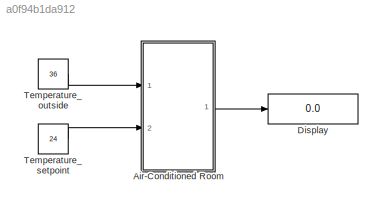
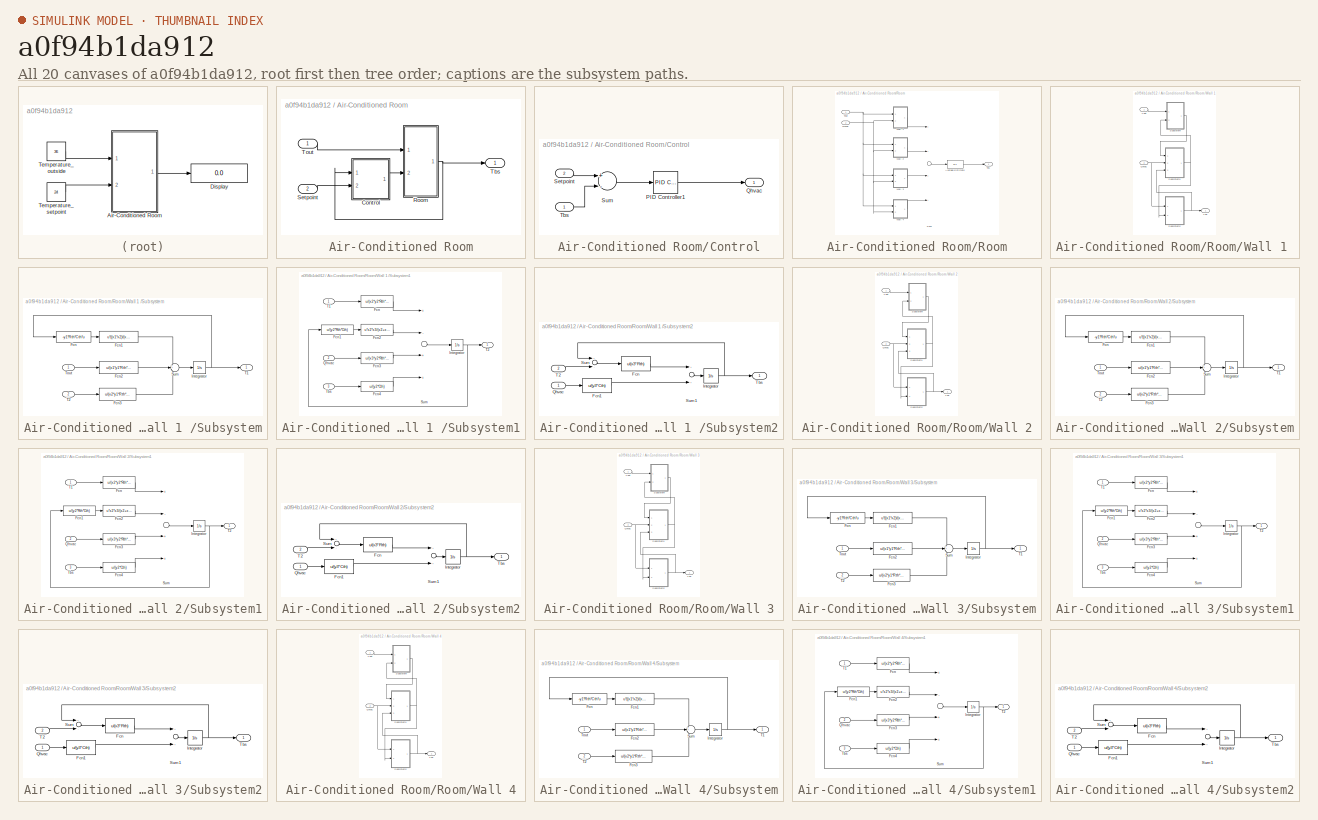
[diagram: thumbnail index - all 20 canvases of the model, root first then tree order]
MODEL slx_a0f94b1da912
KIND model
CONFIG AbsTol = auto
CONFIG FixedStep = auto
CONFIG InitFcn = server = Sim_server(10000);
CONFIG MaxStep = auto
CONFIG MinStep = auto
CONFIG RelTol = 1e-3
CONFIG SampleTimeConstraint = Unconstrained
CONFIG Solver = ode45
CONFIG SolverMode = Auto
CONFIG SolverName = ode45
CONFIG StartTime = 0.0
CONFIG StopFcn = server.stop
CONFIG StopTime = 200
BLOCK [SubSystem] Air-Conditioned Room
  Ports = [2, 1]
  RequestExecContextInheritance = off
  Variant = off
BLOCK [SubSystem] Air-Conditioned Room/Control
  Ports = [2, 1]
  RequestExecContextInheritance = off
  Variant = off
BLOCK [Reference] Air-Conditioned Room/Control/PID Controller1  REF=simulink/Continuous/PID Controller
  AntiWindupMode = back-calculation
  Controller = PID
  ControllerParametersSource = internal
  D = -0.161133654003053
  DGainOutDataTypeStr = Inherit: Inherit via internal rule
  DOutDataTypeStr = Inherit: Inherit via internal rule
  DOutMax = []
  DOutMin = []
  DParamDataTypeStr = Inherit: Inherit via internal rule
  DParamMax = []
  DParamMin = []
  DProdOutDataTypeStr = Inherit: Inherit via internal rule
  DifferentiatorICPrevScaledInput = 0
  DifferentiatorOutDataTypeStr = Inherit: Inherit via internal rule
  DifferentiatorOutMax = []
  DifferentiatorOutMin = []
  ExternalReset = none
  FilterContinuousStateAttributes = ''
  FilterMethod = Forward Euler
  FilterOutDataTypeStr = Inherit: Inherit via internal rule
  FilterOutMax = []
  FilterOutMin = []
  FilterRTWStateStorageClass = Auto
  FilterStateMustResolveToSignalObject = off
  Form = Parallel
  I = -345.034799736216
  IGainOutDataTypeStr = Inherit: Inherit via internal rule
  IOutDataTypeStr = Inherit: Inherit via internal rule
  IOutMax = []
  IOutMin = []
  IParamDataTypeStr = Inherit: Inherit via internal rule
  IParamMax = []
  IParamMin = []
  IProdOutDataTypeStr = Inherit: Inherit via internal rule
  IgnoreLimit = off
  InitialConditionForFilter = 0
  InitialConditionForIntegrator = 0
  InitialConditionSource = internal
  IntegratorContinuousStateAttributes = ''
  IntegratorMethod = Forward Euler
  IntegratorOutDataTypeStr = Inherit: Inherit via internal rule
  IntegratorOutMax = []
  IntegratorOutMin = []
  IntegratorRTWStateStorageClass = Auto
  IntegratorStateMustResolveToSignalObject = off
  Kb = 1
  KbOutDataTypeStr = Inherit: Inherit via internal rule
  KbOutMax = []
  KbOutMin = []
  KbParamDataTypeStr = Inherit: Inherit via internal rule
  KbParamMax = []
  KbParamMin = []
  Kt = 1
  KtOutDataTypeStr = Inherit: Inherit via internal rule
  KtOutMax = []
  KtOutMin = []
  KtParamDataTypeStr = Inherit: Inherit via internal rule
  KtParamMax = []
  KtParamMin = []
  LimitOutput = on
  LinearizeAsGain = on
  LockScale = off
  LowerSaturationLimit = 16
  N = 216.924955724861
  NGainOutDataTypeStr = Inherit: Inherit via internal rule
  NOutDataTypeStr = Inherit: Inherit via internal rule
  NOutMax = []
  NOutMin = []
  NParamDataTypeStr = Inherit: Inherit via internal rule
  NParamMax = []
  NParamMin = []
  NProdOutDataTypeStr = Inherit: Inherit via internal rule
  P = -48.5287946828106
  PGainOutDataTypeStr = Inherit: Inherit via internal rule
  POutDataTypeStr = Inherit: Inherit via internal rule
  POutMax = []
  POutMin = []
  PParamDataTypeStr = Inherit: Inherit via internal rule
  PParamMax = []
  PParamMin = []
  PProdOutDataTypeStr = Inherit: Inherit via internal rule
  Ports = [1, 1]
  RndMeth = Floor
  SampleTime = -1
  SaturateOnIntegerOverflow = off
  SaturationOutDataTypeStr = Inherit: Same as input
  SaturationOutMax = []
  SaturationOutMin = []
  SourceBlock = simulink/Continuous/PID Controller
  SourceType = PID 1dof
  SumAccumDataTypeStr = Inherit: Inherit via internal rule
  SumDAccumDataTypeStr = Inherit: Inherit via internal rule
  SumDOutDataTypeStr = Inherit: Inherit via internal rule
  SumDOutMax = []
  SumDOutMin = []
  SumI1AccumDataTypeStr = Inherit: Inherit via internal rule
  SumI1OutDataTypeStr = Inherit: Inherit via internal rule
  SumI1OutMax = []
  SumI1OutMin = []
  SumI2AccumDataTypeStr = Inherit: Inherit via internal rule
  SumI2OutDataTypeStr = Inherit: Inherit via internal rule
  SumI2OutMax = []
  SumI2OutMin = []
  SumI3AccumDataTypeStr = Inherit: Inherit via internal rule
  SumI3OutDataTypeStr = Inherit: Inherit via internal rule
  SumI3OutMax = []
  SumI3OutMin = []
  SumOutDataTypeStr = Inherit: Inherit via internal rule
  SumOutMax = []
  SumOutMin = []
  TimeDomain = Continuous-time
  TrackingMode = off
  UpperSaturationLimit = 20
  UseFilter = on
  ZeroCross = on
BLOCK [Outport] Air-Conditioned Room/Control/Qhvac 
  IconDisplay = Port number
BLOCK [Inport] Air-Conditioned Room/Control/Setpoint
  IconDisplay = Port number
  Port = 2
BLOCK [Sum] Air-Conditioned Room/Control/Sum
  InputSameDT = off
  Inputs = +-
  OutDataTypeStr = Inherit: Inherit via internal rule
  Ports = [2, 1]
  SaturateOnIntegerOverflow = off
BLOCK [Inport] Air-Conditioned Room/Control/Tbs 
  IconDisplay = Port number
BLOCK [SubSystem] Air-Conditioned Room/Room
  Ports = [2, 1]
  RequestExecContextInheritance = off
  Variant = off
BLOCK [Fcn] Air-Conditioned Room/Room/Average Estimate
  Expr = u/4
BLOCK [Inport] Air-Conditioned Room/Room/Qhvac
  IconDisplay = Port number
  Port = 2
BLOCK [Sum] Air-Conditioned Room/Room/Sum
  InputSameDT = off
  Inputs = ++++
  OutDataTypeStr = Inherit: Inherit via internal rule
  Ports = [4, 1]
  SaturateOnIntegerOverflow = off
BLOCK [Outport] Air-Conditioned Room/Room/Tbs
  IconDisplay = Port number
BLOCK [Inport] Air-Conditioned Room/Room/Tout
  IconDisplay = Port number
BLOCK [SubSystem] Air-Conditioned Room/Room/Wall 1 
  Ports = [2, 1]
  RequestExecContextInheritance = off
  Variant = off
BLOCK [Inport] Air-Conditioned Room/Room/Wall 1 /Qhvac
  IconDisplay = Port number
  Port = 2
BLOCK [SubSystem] Air-Conditioned Room/Room/Wall 1 /Subsystem
  Ports = [2, 1]
  RequestExecContextInheritance = off
  Variant = off
BLOCK [Fcn] Air-Conditioned Room/Room/Wall 1 /Subsystem/Fcn
  Expr = -y1*Rth*Cth*u
BLOCK [Fcn] Air-Conditioned Room/Room/Wall 1 /Subsystem/Fcn1
  Expr = u*((x1*x2)/(x1+x2))
BLOCK [Fcn] Air-Conditioned Room/Room/Wall 1 /Subsystem/Fcn2
  Expr = u/(x1*y1*Rth*Cth)
BLOCK [Fcn] Air-Conditioned Room/Room/Wall 1 /Subsystem/Fcn3
  Expr = u/(x2*y1*Rth*Cth)
BLOCK [Integrator] Air-Conditioned Room/Room/Wall 1 /Subsystem/Integrator
  Ports = [1, 1]
BLOCK [Sum] Air-Conditioned Room/Room/Wall 1 /Subsystem/Sum
  IconShape = round
  InputSameDT = off
  Inputs = 3
  OutDataTypeStr = Inherit: Inherit via internal rule
  Ports = [3, 1]
  SaturateOnIntegerOverflow = off
BLOCK [Outport] Air-Conditioned Room/Room/Wall 1 /Subsystem/T1
  IconDisplay = Port number
BLOCK [Inport] Air-Conditioned Room/Room/Wall 1 /Subsystem/T2
  IconDisplay = Port number
  Port = 2
BLOCK [Inport] Air-Conditioned Room/Room/Wall 1 /Subsystem/Tout
  IconDisplay = Port number
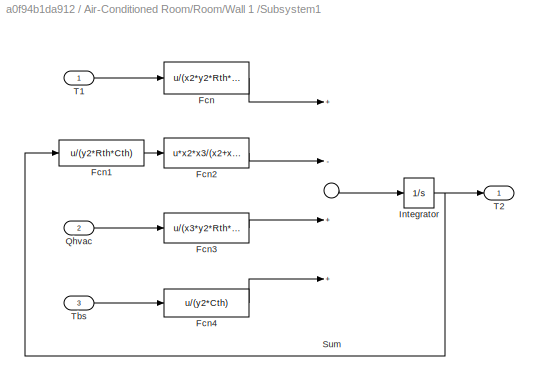
BLOCK [SubSystem] Air-Conditioned Room/Room/Wall 1 /Subsystem1
  Ports = [3, 1]
  RequestExecContextInheritance = off
  Variant = off
BLOCK [Fcn] Air-Conditioned Room/Room/Wall 1 /Subsystem1/Fcn
  Expr = u/(x2*y2*Rth*Cth)
BLOCK [Fcn] Air-Conditioned Room/Room/Wall 1 /Subsystem1/Fcn1
  Expr = u/(y2*Rth*Cth)
BLOCK [Fcn] Air-Conditioned Room/Room/Wall 1 /Subsystem1/Fcn2
  Expr = u*x2*x3/(x2+x3)
BLOCK [Fcn] Air-Conditioned Room/Room/Wall 1 /Subsystem1/Fcn3
  Expr = u/(x3*y2*Rth*Cth)
BLOCK [Fcn] Air-Conditioned Room/Room/Wall 1 /Subsystem1/Fcn4
  Expr = u/(y2*Cth)
BLOCK [Integrator] Air-Conditioned Room/Room/Wall 1 /Subsystem1/Integrator
  Ports = [1, 1]
BLOCK [Inport] Air-Conditioned Room/Room/Wall 1 /Subsystem1/Qhvac
  IconDisplay = Port number
  Port = 2
BLOCK [Sum] Air-Conditioned Room/Room/Wall 1 /Subsystem1/Sum
  InputSameDT = off
  Inputs = +-++
  OutDataTypeStr = Inherit: Inherit via internal rule
  Ports = [4, 1]
  RndMeth = Round
  SaturateOnIntegerOverflow = off
BLOCK [Inport] Air-Conditioned Room/Room/Wall 1 /Subsystem1/T1 
  IconDisplay = Port number
BLOCK [Outport] Air-Conditioned Room/Room/Wall 1 /Subsystem1/T2 
  IconDisplay = Port number
BLOCK [Inport] Air-Conditioned Room/Room/Wall 1 /Subsystem1/Tbs
  IconDisplay = Port number
  Port = 3
BLOCK [SubSystem] Air-Conditioned Room/Room/Wall 1 /Subsystem2
  Ports = [2, 1]
  RequestExecContextInheritance = off
  Variant = off
BLOCK [Fcn] Air-Conditioned Room/Room/Wall 1 /Subsystem2/Fcn
  Expr = u/(x3*Rth)
BLOCK [Fcn] Air-Conditioned Room/Room/Wall 1 /Subsystem2/Fcn1
  Expr = u/(y3*Cth)
BLOCK [Integrator] Air-Conditioned Room/Room/Wall 1 /Subsystem2/Integrator
  Ports = [1, 1]
BLOCK [Inport] Air-Conditioned Room/Room/Wall 1 /Subsystem2/Qhvac 
  IconDisplay = Port number
BLOCK [Sum] Air-Conditioned Room/Room/Wall 1 /Subsystem2/Sum
  InputSameDT = off
  Inputs = +-
  OutDataTypeStr = Inherit: Inherit via internal rule
  Ports = [2, 1]
  SaturateOnIntegerOverflow = off
BLOCK [Sum] Air-Conditioned Room/Room/Wall 1 /Subsystem2/Sum1
  InputSameDT = off
  OutDataTypeStr = Inherit: Inherit via internal rule
  Ports = [2, 1]
  SaturateOnIntegerOverflow = off
BLOCK [Inport] Air-Conditioned Room/Room/Wall 1 /Subsystem2/T2 
  IconDisplay = Port number
  Port = 2
BLOCK [Outport] Air-Conditioned Room/Room/Wall 1 /Subsystem2/Tbs 
  IconDisplay = Port number
BLOCK [Outport] Air-Conditioned Room/Room/Wall 1 /Tbs 
  IconDisplay = Port number
BLOCK [Inport] Air-Conditioned Room/Room/Wall 1 /Tout
  IconDisplay = Port number
BLOCK [SubSystem] Air-Conditioned Room/Room/Wall 2
  Ports = [2, 1]
  RequestExecContextInheritance = off
  Variant = off
BLOCK [Inport] Air-Conditioned Room/Room/Wall 2/Qhvac
  IconDisplay = Port number
  Port = 2
BLOCK [SubSystem] Air-Conditioned Room/Room/Wall 2/Subsystem
  Ports = [2, 1]
  RequestExecContextInheritance = off
  Variant = off
BLOCK [Fcn] Air-Conditioned Room/Room/Wall 2/Subsystem/Fcn
  Expr = -y1*Rth*Cth*u
BLOCK [Fcn] Air-Conditioned Room/Room/Wall 2/Subsystem/Fcn1
  Expr = u*((x1*x2)/(x1+x2))
BLOCK [Fcn] Air-Conditioned Room/Room/Wall 2/Subsystem/Fcn2
  Expr = u/(x1*y1*Rth*Cth)
BLOCK [Fcn] Air-Conditioned Room/Room/Wall 2/Subsystem/Fcn3
  Expr = u/(x2*y1*Rth*Cth)
BLOCK [Integrator] Air-Conditioned Room/Room/Wall 2/Subsystem/Integrator
  Ports = [1, 1]
BLOCK [Sum] Air-Conditioned Room/Room/Wall 2/Subsystem/Sum
  IconShape = round
  InputSameDT = off
  Inputs = 3
  OutDataTypeStr = Inherit: Inherit via internal rule
  Ports = [3, 1]
  SaturateOnIntegerOverflow = off
BLOCK [Outport] Air-Conditioned Room/Room/Wall 2/Subsystem/T1
  IconDisplay = Port number
BLOCK [Inport] Air-Conditioned Room/Room/Wall 2/Subsystem/T2
  IconDisplay = Port number
  Port = 2
BLOCK [Inport] Air-Conditioned Room/Room/Wall 2/Subsystem/Tout
  IconDisplay = Port number
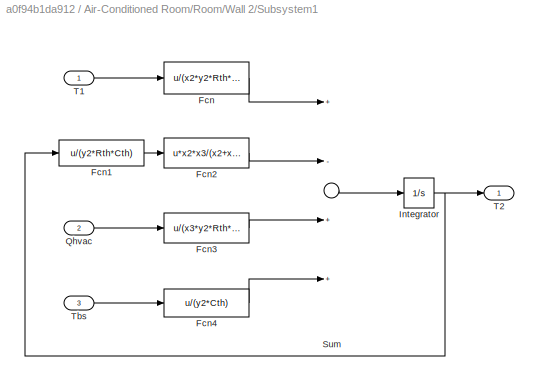
BLOCK [SubSystem] Air-Conditioned Room/Room/Wall 2/Subsystem1
  Ports = [3, 1]
  RequestExecContextInheritance = off
  Variant = off
BLOCK [Fcn] Air-Conditioned Room/Room/Wall 2/Subsystem1/Fcn
  Expr = u/(x2*y2*Rth*Cth)
BLOCK [Fcn] Air-Conditioned Room/Room/Wall 2/Subsystem1/Fcn1
  Expr = u/(y2*Rth*Cth)
BLOCK [Fcn] Air-Conditioned Room/Room/Wall 2/Subsystem1/Fcn2
  Expr = u*x2*x3/(x2+x3)
BLOCK [Fcn] Air-Conditioned Room/Room/Wall 2/Subsystem1/Fcn3
  Expr = u/(x3*y2*Rth*Cth)
BLOCK [Fcn] Air-Conditioned Room/Room/Wall 2/Subsystem1/Fcn4
  Expr = u/(y2*Cth)
BLOCK [Integrator] Air-Conditioned Room/Room/Wall 2/Subsystem1/Integrator
  Ports = [1, 1]
BLOCK [Inport] Air-Conditioned Room/Room/Wall 2/Subsystem1/Qhvac
  IconDisplay = Port number
  Port = 2
BLOCK [Sum] Air-Conditioned Room/Room/Wall 2/Subsystem1/Sum
  InputSameDT = off
  Inputs = +-++
  OutDataTypeStr = Inherit: Inherit via internal rule
  Ports = [4, 1]
  RndMeth = Round
  SaturateOnIntegerOverflow = off
BLOCK [Inport] Air-Conditioned Room/Room/Wall 2/Subsystem1/T1 
  IconDisplay = Port number
BLOCK [Outport] Air-Conditioned Room/Room/Wall 2/Subsystem1/T2 
  IconDisplay = Port number
BLOCK [Inport] Air-Conditioned Room/Room/Wall 2/Subsystem1/Tbs
  IconDisplay = Port number
  Port = 3
BLOCK [SubSystem] Air-Conditioned Room/Room/Wall 2/Subsystem2
  Ports = [2, 1]
  RequestExecContextInheritance = off
  Variant = off
BLOCK [Fcn] Air-Conditioned Room/Room/Wall 2/Subsystem2/Fcn
  Expr = u/(x3*Rth)
BLOCK [Fcn] Air-Conditioned Room/Room/Wall 2/Subsystem2/Fcn1
  Expr = u/(y3*Cth)
BLOCK [Integrator] Air-Conditioned Room/Room/Wall 2/Subsystem2/Integrator
  Ports = [1, 1]
BLOCK [Inport] Air-Conditioned Room/Room/Wall 2/Subsystem2/Qhvac 
  IconDisplay = Port number
BLOCK [Sum] Air-Conditioned Room/Room/Wall 2/Subsystem2/Sum
  InputSameDT = off
  Inputs = +-
  OutDataTypeStr = Inherit: Inherit via internal rule
  Ports = [2, 1]
  SaturateOnIntegerOverflow = off
BLOCK [Sum] Air-Conditioned Room/Room/Wall 2/Subsystem2/Sum1
  InputSameDT = off
  OutDataTypeStr = Inherit: Inherit via internal rule
  Ports = [2, 1]
  SaturateOnIntegerOverflow = off
BLOCK [Inport] Air-Conditioned Room/Room/Wall 2/Subsystem2/T2 
  IconDisplay = Port number
  Port = 2
BLOCK [Outport] Air-Conditioned Room/Room/Wall 2/Subsystem2/Tbs 
  IconDisplay = Port number
BLOCK [Outport] Air-Conditioned Room/Room/Wall 2/Tbs 
  IconDisplay = Port number
BLOCK [Inport] Air-Conditioned Room/Room/Wall 2/Tout
  IconDisplay = Port number
BLOCK [SubSystem] Air-Conditioned Room/Room/Wall 3
  Ports = [2, 1]
  RequestExecContextInheritance = off
  Variant = off
BLOCK [Inport] Air-Conditioned Room/Room/Wall 3/Qhvac
  IconDisplay = Port number
  Port = 2
BLOCK [SubSystem] Air-Conditioned Room/Room/Wall 3/Subsystem
  Ports = [2, 1]
  RequestExecContextInheritance = off
  Variant = off
BLOCK [Fcn] Air-Conditioned Room/Room/Wall 3/Subsystem/Fcn
  Expr = -y1*Rth*Cth*u
BLOCK [Fcn] Air-Conditioned Room/Room/Wall 3/Subsystem/Fcn1
  Expr = u*((x1*x2)/(x1+x2))
BLOCK [Fcn] Air-Conditioned Room/Room/Wall 3/Subsystem/Fcn2
  Expr = u/(x1*y1*Rth*Cth)
BLOCK [Fcn] Air-Conditioned Room/Room/Wall 3/Subsystem/Fcn3
  Expr = u/(x2*y1*Rth*Cth)
BLOCK [Integrator] Air-Conditioned Room/Room/Wall 3/Subsystem/Integrator
  Ports = [1, 1]
BLOCK [Sum] Air-Conditioned Room/Room/Wall 3/Subsystem/Sum
  IconShape = round
  InputSameDT = off
  Inputs = 3
  OutDataTypeStr = Inherit: Inherit via internal rule
  Ports = [3, 1]
  SaturateOnIntegerOverflow = off
BLOCK [Outport] Air-Conditioned Room/Room/Wall 3/Subsystem/T1
  IconDisplay = Port number
BLOCK [Inport] Air-Conditioned Room/Room/Wall 3/Subsystem/T2
  IconDisplay = Port number
  Port = 2
BLOCK [Inport] Air-Conditioned Room/Room/Wall 3/Subsystem/Tout
  IconDisplay = Port number
BLOCK [SubSystem] Air-Conditioned Room/Room/Wall 3/Subsystem1
  Ports = [3, 1]
  RequestExecContextInheritance = off
  Variant = off
BLOCK [Fcn] Air-Conditioned Room/Room/Wall 3/Subsystem1/Fcn
  Expr = u/(x2*y2*Rth*Cth)
BLOCK [Fcn] Air-Conditioned Room/Room/Wall 3/Subsystem1/Fcn1
  Expr = u/(y2*Rth*Cth)
BLOCK [Fcn] Air-Conditioned Room/Room/Wall 3/Subsystem1/Fcn2
  Expr = u*x2*x3/(x2+x3)
BLOCK [Fcn] Air-Conditioned Room/Room/Wall 3/Subsystem1/Fcn3
  Expr = u/(x3*y2*Rth*Cth)
BLOCK [Fcn] Air-Conditioned Room/Room/Wall 3/Subsystem1/Fcn4
  Expr = u/(y2*Cth)
BLOCK [Integrator] Air-Conditioned Room/Room/Wall 3/Subsystem1/Integrator
  Ports = [1, 1]
BLOCK [Inport] Air-Conditioned Room/Room/Wall 3/Subsystem1/Qhvac
  IconDisplay = Port number
  Port = 2
BLOCK [Sum] Air-Conditioned Room/Room/Wall 3/Subsystem1/Sum
  InputSameDT = off
  Inputs = +-++
  OutDataTypeStr = Inherit: Inherit via internal rule
  Ports = [4, 1]
  RndMeth = Round
  SaturateOnIntegerOverflow = off
BLOCK [Inport] Air-Conditioned Room/Room/Wall 3/Subsystem1/T1 
  IconDisplay = Port number
BLOCK [Outport] Air-Conditioned Room/Room/Wall 3/Subsystem1/T2 
  IconDisplay = Port number
BLOCK [Inport] Air-Conditioned Room/Room/Wall 3/Subsystem1/Tbs
  IconDisplay = Port number
  Port = 3
BLOCK [SubSystem] Air-Conditioned Room/Room/Wall 3/Subsystem2
  Ports = [2, 1]
  RequestExecContextInheritance = off
  Variant = off
BLOCK [Fcn] Air-Conditioned Room/Room/Wall 3/Subsystem2/Fcn
  Expr = u/(x3*Rth)
BLOCK [Fcn] Air-Conditioned Room/Room/Wall 3/Subsystem2/Fcn1
  Expr = u/(y3*Cth)
BLOCK [Integrator] Air-Conditioned Room/Room/Wall 3/Subsystem2/Integrator
  Ports = [1, 1]
BLOCK [Inport] Air-Conditioned Room/Room/Wall 3/Subsystem2/Qhvac 
  IconDisplay = Port number
BLOCK [Sum] Air-Conditioned Room/Room/Wall 3/Subsystem2/Sum
  InputSameDT = off
  Inputs = +-
  OutDataTypeStr = Inherit: Inherit via internal rule
  Ports = [2, 1]
  SaturateOnIntegerOverflow = off
BLOCK [Sum] Air-Conditioned Room/Room/Wall 3/Subsystem2/Sum1
  InputSameDT = off
  OutDataTypeStr = Inherit: Inherit via internal rule
  Ports = [2, 1]
  SaturateOnIntegerOverflow = off
BLOCK [Inport] Air-Conditioned Room/Room/Wall 3/Subsystem2/T2 
  IconDisplay = Port number
  Port = 2
BLOCK [Outport] Air-Conditioned Room/Room/Wall 3/Subsystem2/Tbs 
  IconDisplay = Port number
BLOCK [Outport] Air-Conditioned Room/Room/Wall 3/Tbs 
  IconDisplay = Port number
BLOCK [Inport] Air-Conditioned Room/Room/Wall 3/Tout
  IconDisplay = Port number
BLOCK [SubSystem] Air-Conditioned Room/Room/Wall 4
  Ports = [2, 1]
  RequestExecContextInheritance = off
  Variant = off
BLOCK [Inport] Air-Conditioned Room/Room/Wall 4/Qhvac
  IconDisplay = Port number
  Port = 2
BLOCK [SubSystem] Air-Conditioned Room/Room/Wall 4/Subsystem
  Ports = [2, 1]
  RequestExecContextInheritance = off
  Variant = off
BLOCK [Fcn] Air-Conditioned Room/Room/Wall 4/Subsystem/Fcn
  Expr = -y1*Rth*Cth*u
BLOCK [Fcn] Air-Conditioned Room/Room/Wall 4/Subsystem/Fcn1
  Expr = u*((x1*x2)/(x1+x2))
BLOCK [Fcn] Air-Conditioned Room/Room/Wall 4/Subsystem/Fcn2
  Expr = u/(x1*y1*Rth*Cth)
BLOCK [Fcn] Air-Conditioned Room/Room/Wall 4/Subsystem/Fcn3
  Expr = u/(x2*y1*Rth*Cth)
BLOCK [Integrator] Air-Conditioned Room/Room/Wall 4/Subsystem/Integrator
  Ports = [1, 1]
BLOCK [Sum] Air-Conditioned Room/Room/Wall 4/Subsystem/Sum
  IconShape = round
  InputSameDT = off
  Inputs = 3
  OutDataTypeStr = Inherit: Inherit via internal rule
  Ports = [3, 1]
  SaturateOnIntegerOverflow = off
BLOCK [Outport] Air-Conditioned Room/Room/Wall 4/Subsystem/T1
  IconDisplay = Port number
BLOCK [Inport] Air-Conditioned Room/Room/Wall 4/Subsystem/T2
  IconDisplay = Port number
  Port = 2
BLOCK [Inport] Air-Conditioned Room/Room/Wall 4/Subsystem/Tout
  IconDisplay = Port number
BLOCK [SubSystem] Air-Conditioned Room/Room/Wall 4/Subsystem1
  Ports = [3, 1]
  RequestExecContextInheritance = off
  Variant = off
BLOCK [Fcn] Air-Conditioned Room/Room/Wall 4/Subsystem1/Fcn
  Expr = u/(x2*y2*Rth*Cth)
BLOCK [Fcn] Air-Conditioned Room/Room/Wall 4/Subsystem1/Fcn1
  Expr = u/(y2*Rth*Cth)
BLOCK [Fcn] Air-Conditioned Room/Room/Wall 4/Subsystem1/Fcn2
  Expr = u*x2*x3/(x2+x3)
BLOCK [Fcn] Air-Conditioned Room/Room/Wall 4/Subsystem1/Fcn3
  Expr = u/(x3*y2*Rth*Cth)
BLOCK [Fcn] Air-Conditioned Room/Room/Wall 4/Subsystem1/Fcn4
  Expr = u/(y2*Cth)
BLOCK [Integrator] Air-Conditioned Room/Room/Wall 4/Subsystem1/Integrator
  Ports = [1, 1]
BLOCK [Inport] Air-Conditioned Room/Room/Wall 4/Subsystem1/Qhvac
  IconDisplay = Port number
  Port = 2
BLOCK [Sum] Air-Conditioned Room/Room/Wall 4/Subsystem1/Sum
  InputSameDT = off
  Inputs = +-++
  OutDataTypeStr = Inherit: Inherit via internal rule
  Ports = [4, 1]
  RndMeth = Round
  SaturateOnIntegerOverflow = off
BLOCK [Inport] Air-Conditioned Room/Room/Wall 4/Subsystem1/T1 
  IconDisplay = Port number
BLOCK [Outport] Air-Conditioned Room/Room/Wall 4/Subsystem1/T2 
  IconDisplay = Port number
BLOCK [Inport] Air-Conditioned Room/Room/Wall 4/Subsystem1/Tbs
  IconDisplay = Port number
  Port = 3
BLOCK [SubSystem] Air-Conditioned Room/Room/Wall 4/Subsystem2
  Ports = [2, 1]
  RequestExecContextInheritance = off
  Variant = off
BLOCK [Fcn] Air-Conditioned Room/Room/Wall 4/Subsystem2/Fcn
  Expr = u/(x3*Rth)
BLOCK [Fcn] Air-Conditioned Room/Room/Wall 4/Subsystem2/Fcn1
  Expr = u/(y3*Cth)
BLOCK [Integrator] Air-Conditioned Room/Room/Wall 4/Subsystem2/Integrator
  Ports = [1, 1]
BLOCK [Inport] Air-Conditioned Room/Room/Wall 4/Subsystem2/Qhvac 
  IconDisplay = Port number
BLOCK [Sum] Air-Conditioned Room/Room/Wall 4/Subsystem2/Sum
  InputSameDT = off
  Inputs = +-
  OutDataTypeStr = Inherit: Inherit via internal rule
  Ports = [2, 1]
  SaturateOnIntegerOverflow = off
BLOCK [Sum] Air-Conditioned Room/Room/Wall 4/Subsystem2/Sum1
  InputSameDT = off
  OutDataTypeStr = Inherit: Inherit via internal rule
  Ports = [2, 1]
  SaturateOnIntegerOverflow = off
BLOCK [Inport] Air-Conditioned Room/Room/Wall 4/Subsystem2/T2 
  IconDisplay = Port number
  Port = 2
BLOCK [Outport] Air-Conditioned Room/Room/Wall 4/Subsystem2/Tbs 
  IconDisplay = Port number
BLOCK [Outport] Air-Conditioned Room/Room/Wall 4/Tbs 
  IconDisplay = Port number
BLOCK [Inport] Air-Conditioned Room/Room/Wall 4/Tout
  IconDisplay = Port number
BLOCK [Inport] Air-Conditioned Room/Setpoint
  IconDisplay = Port number
  Port = 2
BLOCK [Outport] Air-Conditioned Room/Tbs
  IconDisplay = Port number
BLOCK [Inport] Air-Conditioned Room/Tout
  IconDisplay = Port number
BLOCK [Display] Display
  Decimation = 1
  Ports = [1]
BLOCK [Constant] Temperature_outside
  Value = 36
BLOCK [Constant] Temperature_setpoint
  Value = 24
LINE Air-Conditioned Room/Control/PID Controller1:1 -> Air-Conditioned Room/Control/Qhvac :1
LINE Air-Conditioned Room/Control/Setpoint:1 -> Air-Conditioned Room/Control/Sum:1
LINE Air-Conditioned Room/Control/Sum:1 -> Air-Conditioned Room/Control/PID Controller1:1
LINE Air-Conditioned Room/Control/Tbs :1 -> Air-Conditioned Room/Control/Sum:2
LINE Air-Conditioned Room/Control:1 -> Air-Conditioned Room/Room:2
LINE Air-Conditioned Room/Room/Average Estimate:1 -> Air-Conditioned Room/Room/Tbs:1
NET Air-Conditioned Room/Room/Qhvac:1 -> Air-Conditioned Room/Room/Wall 1 :2, Air-Conditioned Room/Room/Wall 2:2, Air-Conditioned Room/Room/Wall 3:2, Air-Conditioned Room/Room/Wall 4:2
LINE Air-Conditioned Room/Room/Sum:1 -> Air-Conditioned Room/Room/Average Estimate:1
NET Air-Conditioned Room/Room/Tout:1 -> Air-Conditioned Room/Room/Wall 1 :1, Air-Conditioned Room/Room/Wall 2:1, Air-Conditioned Room/Room/Wall 3:1, Air-Conditioned Room/Room/Wall 4:1
NET Air-Conditioned Room/Room/Wall 1 /Qhvac:1 -> Air-Conditioned Room/Room/Wall 1 /Subsystem1:2, Air-Conditioned Room/Room/Wall 1 /Subsystem2:1
LINE Air-Conditioned Room/Room/Wall 1 /Subsystem/Fcn1:1 -> Air-Conditioned Room/Room/Wall 1 /Subsystem/Sum:1
LINE Air-Conditioned Room/Room/Wall 1 /Subsystem/Fcn2:1 -> Air-Conditioned Room/Room/Wall 1 /Subsystem/Sum:2
LINE Air-Conditioned Room/Room/Wall 1 /Subsystem/Fcn3:1 -> Air-Conditioned Room/Room/Wall 1 /Subsystem/Sum:3
LINE Air-Conditioned Room/Room/Wall 1 /Subsystem/Fcn:1 -> Air-Conditioned Room/Room/Wall 1 /Subsystem/Fcn1:1
NET Air-Conditioned Room/Room/Wall 1 /Subsystem/Integrator:1 -> Air-Conditioned Room/Room/Wall 1 /Subsystem/Fcn:1, Air-Conditioned Room/Room/Wall 1 /Subsystem/T1:1
LINE Air-Conditioned Room/Room/Wall 1 /Subsystem/Sum:1 -> Air-Conditioned Room/Room/Wall 1 /Subsystem/Integrator:1
LINE Air-Conditioned Room/Room/Wall 1 /Subsystem/T2:1 -> Air-Conditioned Room/Room/Wall 1 /Subsystem/Fcn3:1
LINE Air-Conditioned Room/Room/Wall 1 /Subsystem/Tout:1 -> Air-Conditioned Room/Room/Wall 1 /Subsystem/Fcn2:1
LINE Air-Conditioned Room/Room/Wall 1 /Subsystem1/Fcn1:1 -> Air-Conditioned Room/Room/Wall 1 /Subsystem1/Fcn2:1
LINE Air-Conditioned Room/Room/Wall 1 /Subsystem1/Fcn2:1 -> Air-Conditioned Room/Room/Wall 1 /Subsystem1/Sum:2
LINE Air-Conditioned Room/Room/Wall 1 /Subsystem1/Fcn3:1 -> Air-Conditioned Room/Room/Wall 1 /Subsystem1/Sum:3
LINE Air-Conditioned Room/Room/Wall 1 /Subsystem1/Fcn4:1 -> Air-Conditioned Room/Room/Wall 1 /Subsystem1/Sum:4
LINE Air-Conditioned Room/Room/Wall 1 /Subsystem1/Fcn:1 -> Air-Conditioned Room/Room/Wall 1 /Subsystem1/Sum:1
NET Air-Conditioned Room/Room/Wall 1 /Subsystem1/Integrator:1 -> Air-Conditioned Room/Room/Wall 1 /Subsystem1/Fcn1:1, Air-Conditioned Room/Room/Wall 1 /Subsystem1/T2 :1
LINE Air-Conditioned Room/Room/Wall 1 /Subsystem1/Qhvac:1 -> Air-Conditioned Room/Room/Wall 1 /Subsystem1/Fcn3:1
LINE Air-Conditioned Room/Room/Wall 1 /Subsystem1/Sum:1 -> Air-Conditioned Room/Room/Wall 1 /Subsystem1/Integrator:1
LINE Air-Conditioned Room/Room/Wall 1 /Subsystem1/T1 :1 -> Air-Conditioned Room/Room/Wall 1 /Subsystem1/Fcn:1
LINE Air-Conditioned Room/Room/Wall 1 /Subsystem1/Tbs:1 -> Air-Conditioned Room/Room/Wall 1 /Subsystem1/Fcn4:1
NET Air-Conditioned Room/Room/Wall 1 /Subsystem1:1 -> Air-Conditioned Room/Room/Wall 1 /Subsystem2:2, Air-Conditioned Room/Room/Wall 1 /Subsystem:2
LINE Air-Conditioned Room/Room/Wall 1 /Subsystem2/Fcn1:1 -> Air-Conditioned Room/Room/Wall 1 /Subsystem2/Sum1:2
LINE Air-Conditioned Room/Room/Wall 1 /Subsystem2/Fcn:1 -> Air-Conditioned Room/Room/Wall 1 /Subsystem2/Sum1:1
NET Air-Conditioned Room/Room/Wall 1 /Subsystem2/Integrator:1 -> Air-Conditioned Room/Room/Wall 1 /Subsystem2/Sum:1, Air-Conditioned Room/Room/Wall 1 /Subsystem2/Tbs :1
LINE Air-Conditioned Room/Room/Wall 1 /Subsystem2/Qhvac :1 -> Air-Conditioned Room/Room/Wall 1 /Subsystem2/Fcn1:1
LINE Air-Conditioned Room/Room/Wall 1 /Subsystem2/Sum1:1 -> Air-Conditioned Room/Room/Wall 1 /Subsystem2/Integrator:1
LINE Air-Conditioned Room/Room/Wall 1 /Subsystem2/Sum:1 -> Air-Conditioned Room/Room/Wall 1 /Subsystem2/Fcn:1
LINE Air-Conditioned Room/Room/Wall 1 /Subsystem2/T2 :1 -> Air-Conditioned Room/Room/Wall 1 /Subsystem2/Sum:2
NET Air-Conditioned Room/Room/Wall 1 /Subsystem2:1 -> Air-Conditioned Room/Room/Wall 1 /Subsystem1:3, Air-Conditioned Room/Room/Wall 1 /Tbs :1
LINE Air-Conditioned Room/Room/Wall 1 /Subsystem:1 -> Air-Conditioned Room/Room/Wall 1 /Subsystem1:1
LINE Air-Conditioned Room/Room/Wall 1 /Tout:1 -> Air-Conditioned Room/Room/Wall 1 /Subsystem:1
LINE Air-Conditioned Room/Room/Wall 1 :1 -> Air-Conditioned Room/Room/Sum:1
NET Air-Conditioned Room/Room/Wall 2/Qhvac:1 -> Air-Conditioned Room/Room/Wall 2/Subsystem1:2, Air-Conditioned Room/Room/Wall 2/Subsystem2:1
LINE Air-Conditioned Room/Room/Wall 2/Subsystem/Fcn1:1 -> Air-Conditioned Room/Room/Wall 2/Subsystem/Sum:1
LINE Air-Conditioned Room/Room/Wall 2/Subsystem/Fcn2:1 -> Air-Conditioned Room/Room/Wall 2/Subsystem/Sum:2
LINE Air-Conditioned Room/Room/Wall 2/Subsystem/Fcn3:1 -> Air-Conditioned Room/Room/Wall 2/Subsystem/Sum:3
LINE Air-Conditioned Room/Room/Wall 2/Subsystem/Fcn:1 -> Air-Conditioned Room/Room/Wall 2/Subsystem/Fcn1:1
NET Air-Conditioned Room/Room/Wall 2/Subsystem/Integrator:1 -> Air-Conditioned Room/Room/Wall 2/Subsystem/Fcn:1, Air-Conditioned Room/Room/Wall 2/Subsystem/T1:1
LINE Air-Conditioned Room/Room/Wall 2/Subsystem/Sum:1 -> Air-Conditioned Room/Room/Wall 2/Subsystem/Integrator:1
LINE Air-Conditioned Room/Room/Wall 2/Subsystem/T2:1 -> Air-Conditioned Room/Room/Wall 2/Subsystem/Fcn3:1
LINE Air-Conditioned Room/Room/Wall 2/Subsystem/Tout:1 -> Air-Conditioned Room/Room/Wall 2/Subsystem/Fcn2:1
LINE Air-Conditioned Room/Room/Wall 2/Subsystem1/Fcn1:1 -> Air-Conditioned Room/Room/Wall 2/Subsystem1/Fcn2:1
LINE Air-Conditioned Room/Room/Wall 2/Subsystem1/Fcn2:1 -> Air-Conditioned Room/Room/Wall 2/Subsystem1/Sum:2
LINE Air-Conditioned Room/Room/Wall 2/Subsystem1/Fcn3:1 -> Air-Conditioned Room/Room/Wall 2/Subsystem1/Sum:3
LINE Air-Conditioned Room/Room/Wall 2/Subsystem1/Fcn4:1 -> Air-Conditioned Room/Room/Wall 2/Subsystem1/Sum:4
LINE Air-Conditioned Room/Room/Wall 2/Subsystem1/Fcn:1 -> Air-Conditioned Room/Room/Wall 2/Subsystem1/Sum:1
NET Air-Conditioned Room/Room/Wall 2/Subsystem1/Integrator:1 -> Air-Conditioned Room/Room/Wall 2/Subsystem1/Fcn1:1, Air-Conditioned Room/Room/Wall 2/Subsystem1/T2 :1
LINE Air-Conditioned Room/Room/Wall 2/Subsystem1/Qhvac:1 -> Air-Conditioned Room/Room/Wall 2/Subsystem1/Fcn3:1
LINE Air-Conditioned Room/Room/Wall 2/Subsystem1/Sum:1 -> Air-Conditioned Room/Room/Wall 2/Subsystem1/Integrator:1
LINE Air-Conditioned Room/Room/Wall 2/Subsystem1/T1 :1 -> Air-Conditioned Room/Room/Wall 2/Subsystem1/Fcn:1
LINE Air-Conditioned Room/Room/Wall 2/Subsystem1/Tbs:1 -> Air-Conditioned Room/Room/Wall 2/Subsystem1/Fcn4:1
NET Air-Conditioned Room/Room/Wall 2/Subsystem1:1 -> Air-Conditioned Room/Room/Wall 2/Subsystem2:2, Air-Conditioned Room/Room/Wall 2/Subsystem:2
LINE Air-Conditioned Room/Room/Wall 2/Subsystem2/Fcn1:1 -> Air-Conditioned Room/Room/Wall 2/Subsystem2/Sum1:2
LINE Air-Conditioned Room/Room/Wall 2/Subsystem2/Fcn:1 -> Air-Conditioned Room/Room/Wall 2/Subsystem2/Sum1:1
NET Air-Conditioned Room/Room/Wall 2/Subsystem2/Integrator:1 -> Air-Conditioned Room/Room/Wall 2/Subsystem2/Sum:1, Air-Conditioned Room/Room/Wall 2/Subsystem2/Tbs :1
LINE Air-Conditioned Room/Room/Wall 2/Subsystem2/Qhvac :1 -> Air-Conditioned Room/Room/Wall 2/Subsystem2/Fcn1:1
LINE Air-Conditioned Room/Room/Wall 2/Subsystem2/Sum1:1 -> Air-Conditioned Room/Room/Wall 2/Subsystem2/Integrator:1
LINE Air-Conditioned Room/Room/Wall 2/Subsystem2/Sum:1 -> Air-Conditioned Room/Room/Wall 2/Subsystem2/Fcn:1
LINE Air-Conditioned Room/Room/Wall 2/Subsystem2/T2 :1 -> Air-Conditioned Room/Room/Wall 2/Subsystem2/Sum:2
NET Air-Conditioned Room/Room/Wall 2/Subsystem2:1 -> Air-Conditioned Room/Room/Wall 2/Subsystem1:3, Air-Conditioned Room/Room/Wall 2/Tbs :1
LINE Air-Conditioned Room/Room/Wall 2/Subsystem:1 -> Air-Conditioned Room/Room/Wall 2/Subsystem1:1
LINE Air-Conditioned Room/Room/Wall 2/Tout:1 -> Air-Conditioned Room/Room/Wall 2/Subsystem:1
LINE Air-Conditioned Room/Room/Wall 2:1 -> Air-Conditioned Room/Room/Sum:2
NET Air-Conditioned Room/Room/Wall 3/Qhvac:1 -> Air-Conditioned Room/Room/Wall 3/Subsystem1:2, Air-Conditioned Room/Room/Wall 3/Subsystem2:1
LINE Air-Conditioned Room/Room/Wall 3/Subsystem/Fcn1:1 -> Air-Conditioned Room/Room/Wall 3/Subsystem/Sum:1
LINE Air-Conditioned Room/Room/Wall 3/Subsystem/Fcn2:1 -> Air-Conditioned Room/Room/Wall 3/Subsystem/Sum:2
LINE Air-Conditioned Room/Room/Wall 3/Subsystem/Fcn3:1 -> Air-Conditioned Room/Room/Wall 3/Subsystem/Sum:3
LINE Air-Conditioned Room/Room/Wall 3/Subsystem/Fcn:1 -> Air-Conditioned Room/Room/Wall 3/Subsystem/Fcn1:1
NET Air-Conditioned Room/Room/Wall 3/Subsystem/Integrator:1 -> Air-Conditioned Room/Room/Wall 3/Subsystem/Fcn:1, Air-Conditioned Room/Room/Wall 3/Subsystem/T1:1
LINE Air-Conditioned Room/Room/Wall 3/Subsystem/Sum:1 -> Air-Conditioned Room/Room/Wall 3/Subsystem/Integrator:1
LINE Air-Conditioned Room/Room/Wall 3/Subsystem/T2:1 -> Air-Conditioned Room/Room/Wall 3/Subsystem/Fcn3:1
LINE Air-Conditioned Room/Room/Wall 3/Subsystem/Tout:1 -> Air-Conditioned Room/Room/Wall 3/Subsystem/Fcn2:1
LINE Air-Conditioned Room/Room/Wall 3/Subsystem1/Fcn1:1 -> Air-Conditioned Room/Room/Wall 3/Subsystem1/Fcn2:1
LINE Air-Conditioned Room/Room/Wall 3/Subsystem1/Fcn2:1 -> Air-Conditioned Room/Room/Wall 3/Subsystem1/Sum:2
LINE Air-Conditioned Room/Room/Wall 3/Subsystem1/Fcn3:1 -> Air-Conditioned Room/Room/Wall 3/Subsystem1/Sum:3
LINE Air-Conditioned Room/Room/Wall 3/Subsystem1/Fcn4:1 -> Air-Conditioned Room/Room/Wall 3/Subsystem1/Sum:4
LINE Air-Conditioned Room/Room/Wall 3/Subsystem1/Fcn:1 -> Air-Conditioned Room/Room/Wall 3/Subsystem1/Sum:1
NET Air-Conditioned Room/Room/Wall 3/Subsystem1/Integrator:1 -> Air-Conditioned Room/Room/Wall 3/Subsystem1/Fcn1:1, Air-Conditioned Room/Room/Wall 3/Subsystem1/T2 :1
LINE Air-Conditioned Room/Room/Wall 3/Subsystem1/Qhvac:1 -> Air-Conditioned Room/Room/Wall 3/Subsystem1/Fcn3:1
LINE Air-Conditioned Room/Room/Wall 3/Subsystem1/Sum:1 -> Air-Conditioned Room/Room/Wall 3/Subsystem1/Integrator:1
LINE Air-Conditioned Room/Room/Wall 3/Subsystem1/T1 :1 -> Air-Conditioned Room/Room/Wall 3/Subsystem1/Fcn:1
LINE Air-Conditioned Room/Room/Wall 3/Subsystem1/Tbs:1 -> Air-Conditioned Room/Room/Wall 3/Subsystem1/Fcn4:1
NET Air-Conditioned Room/Room/Wall 3/Subsystem1:1 -> Air-Conditioned Room/Room/Wall 3/Subsystem2:2, Air-Conditioned Room/Room/Wall 3/Subsystem:2
LINE Air-Conditioned Room/Room/Wall 3/Subsystem2/Fcn1:1 -> Air-Conditioned Room/Room/Wall 3/Subsystem2/Sum1:2
LINE Air-Conditioned Room/Room/Wall 3/Subsystem2/Fcn:1 -> Air-Conditioned Room/Room/Wall 3/Subsystem2/Sum1:1
NET Air-Conditioned Room/Room/Wall 3/Subsystem2/Integrator:1 -> Air-Conditioned Room/Room/Wall 3/Subsystem2/Sum:1, Air-Conditioned Room/Room/Wall 3/Subsystem2/Tbs :1
LINE Air-Conditioned Room/Room/Wall 3/Subsystem2/Qhvac :1 -> Air-Conditioned Room/Room/Wall 3/Subsystem2/Fcn1:1
LINE Air-Conditioned Room/Room/Wall 3/Subsystem2/Sum1:1 -> Air-Conditioned Room/Room/Wall 3/Subsystem2/Integrator:1
LINE Air-Conditioned Room/Room/Wall 3/Subsystem2/Sum:1 -> Air-Conditioned Room/Room/Wall 3/Subsystem2/Fcn:1
LINE Air-Conditioned Room/Room/Wall 3/Subsystem2/T2 :1 -> Air-Conditioned Room/Room/Wall 3/Subsystem2/Sum:2
NET Air-Conditioned Room/Room/Wall 3/Subsystem2:1 -> Air-Conditioned Room/Room/Wall 3/Subsystem1:3, Air-Conditioned Room/Room/Wall 3/Tbs :1
LINE Air-Conditioned Room/Room/Wall 3/Subsystem:1 -> Air-Conditioned Room/Room/Wall 3/Subsystem1:1
LINE Air-Conditioned Room/Room/Wall 3/Tout:1 -> Air-Conditioned Room/Room/Wall 3/Subsystem:1
LINE Air-Conditioned Room/Room/Wall 3:1 -> Air-Conditioned Room/Room/Sum:3
NET Air-Conditioned Room/Room/Wall 4/Qhvac:1 -> Air-Conditioned Room/Room/Wall 4/Subsystem1:2, Air-Conditioned Room/Room/Wall 4/Subsystem2:1
LINE Air-Conditioned Room/Room/Wall 4/Subsystem/Fcn1:1 -> Air-Conditioned Room/Room/Wall 4/Subsystem/Sum:1
LINE Air-Conditioned Room/Room/Wall 4/Subsystem/Fcn2:1 -> Air-Conditioned Room/Room/Wall 4/Subsystem/Sum:2
LINE Air-Conditioned Room/Room/Wall 4/Subsystem/Fcn3:1 -> Air-Conditioned Room/Room/Wall 4/Subsystem/Sum:3
LINE Air-Conditioned Room/Room/Wall 4/Subsystem/Fcn:1 -> Air-Conditioned Room/Room/Wall 4/Subsystem/Fcn1:1
NET Air-Conditioned Room/Room/Wall 4/Subsystem/Integrator:1 -> Air-Conditioned Room/Room/Wall 4/Subsystem/Fcn:1, Air-Conditioned Room/Room/Wall 4/Subsystem/T1:1
LINE Air-Conditioned Room/Room/Wall 4/Subsystem/Sum:1 -> Air-Conditioned Room/Room/Wall 4/Subsystem/Integrator:1
LINE Air-Conditioned Room/Room/Wall 4/Subsystem/T2:1 -> Air-Conditioned Room/Room/Wall 4/Subsystem/Fcn3:1
LINE Air-Conditioned Room/Room/Wall 4/Subsystem/Tout:1 -> Air-Conditioned Room/Room/Wall 4/Subsystem/Fcn2:1
LINE Air-Conditioned Room/Room/Wall 4/Subsystem1/Fcn1:1 -> Air-Conditioned Room/Room/Wall 4/Subsystem1/Fcn2:1
LINE Air-Conditioned Room/Room/Wall 4/Subsystem1/Fcn2:1 -> Air-Conditioned Room/Room/Wall 4/Subsystem1/Sum:2
LINE Air-Conditioned Room/Room/Wall 4/Subsystem1/Fcn3:1 -> Air-Conditioned Room/Room/Wall 4/Subsystem1/Sum:3
LINE Air-Conditioned Room/Room/Wall 4/Subsystem1/Fcn4:1 -> Air-Conditioned Room/Room/Wall 4/Subsystem1/Sum:4
LINE Air-Conditioned Room/Room/Wall 4/Subsystem1/Fcn:1 -> Air-Conditioned Room/Room/Wall 4/Subsystem1/Sum:1
NET Air-Conditioned Room/Room/Wall 4/Subsystem1/Integrator:1 -> Air-Conditioned Room/Room/Wall 4/Subsystem1/Fcn1:1, Air-Conditioned Room/Room/Wall 4/Subsystem1/T2 :1
LINE Air-Conditioned Room/Room/Wall 4/Subsystem1/Qhvac:1 -> Air-Conditioned Room/Room/Wall 4/Subsystem1/Fcn3:1
LINE Air-Conditioned Room/Room/Wall 4/Subsystem1/Sum:1 -> Air-Conditioned Room/Room/Wall 4/Subsystem1/Integrator:1
LINE Air-Conditioned Room/Room/Wall 4/Subsystem1/T1 :1 -> Air-Conditioned Room/Room/Wall 4/Subsystem1/Fcn:1
LINE Air-Conditioned Room/Room/Wall 4/Subsystem1/Tbs:1 -> Air-Conditioned Room/Room/Wall 4/Subsystem1/Fcn4:1
NET Air-Conditioned Room/Room/Wall 4/Subsystem1:1 -> Air-Conditioned Room/Room/Wall 4/Subsystem2:2, Air-Conditioned Room/Room/Wall 4/Subsystem:2
LINE Air-Conditioned Room/Room/Wall 4/Subsystem2/Fcn1:1 -> Air-Conditioned Room/Room/Wall 4/Subsystem2/Sum1:2
LINE Air-Conditioned Room/Room/Wall 4/Subsystem2/Fcn:1 -> Air-Conditioned Room/Room/Wall 4/Subsystem2/Sum1:1
NET Air-Conditioned Room/Room/Wall 4/Subsystem2/Integrator:1 -> Air-Conditioned Room/Room/Wall 4/Subsystem2/Sum:1, Air-Conditioned Room/Room/Wall 4/Subsystem2/Tbs :1
LINE Air-Conditioned Room/Room/Wall 4/Subsystem2/Qhvac :1 -> Air-Conditioned Room/Room/Wall 4/Subsystem2/Fcn1:1
LINE Air-Conditioned Room/Room/Wall 4/Subsystem2/Sum1:1 -> Air-Conditioned Room/Room/Wall 4/Subsystem2/Integrator:1
LINE Air-Conditioned Room/Room/Wall 4/Subsystem2/Sum:1 -> Air-Conditioned Room/Room/Wall 4/Subsystem2/Fcn:1
LINE Air-Conditioned Room/Room/Wall 4/Subsystem2/T2 :1 -> Air-Conditioned Room/Room/Wall 4/Subsystem2/Sum:2
NET Air-Conditioned Room/Room/Wall 4/Subsystem2:1 -> Air-Conditioned Room/Room/Wall 4/Subsystem1:3, Air-Conditioned Room/Room/Wall 4/Tbs :1
LINE Air-Conditioned Room/Room/Wall 4/Subsystem:1 -> Air-Conditioned Room/Room/Wall 4/Subsystem1:1
LINE Air-Conditioned Room/Room/Wall 4/Tout:1 -> Air-Conditioned Room/Room/Wall 4/Subsystem:1
LINE Air-Conditioned Room/Room/Wall 4:1 -> Air-Conditioned Room/Room/Sum:4
NET Air-Conditioned Room/Room:1 -> Air-Conditioned Room/Control:1, Air-Conditioned Room/Tbs:1
LINE Air-Conditioned Room/Setpoint:1 -> Air-Conditioned Room/Control:2
LINE Air-Conditioned Room/Tout:1 -> Air-Conditioned Room/Room:1
LINE Air-Conditioned Room:1 -> Display:1
LINE Temperature_outside:1 -> Air-Conditioned Room:1
LINE Temperature_setpoint:1 -> Air-Conditioned Room:2
note: NET lines group one-source signal fan-out (src -> all destinations, sorted); 1:1 wires keep LINE
